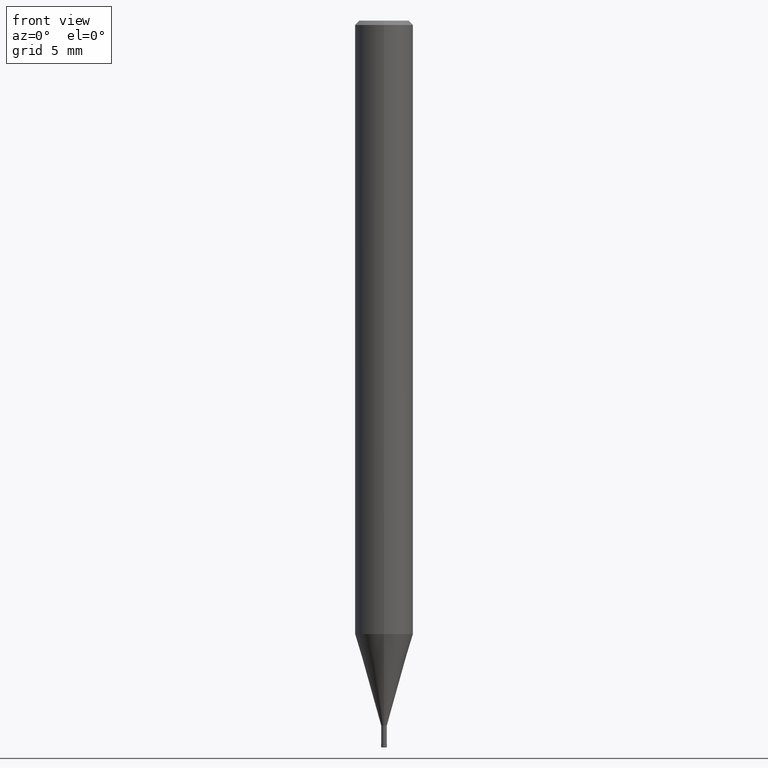
[diagram: clean part render]
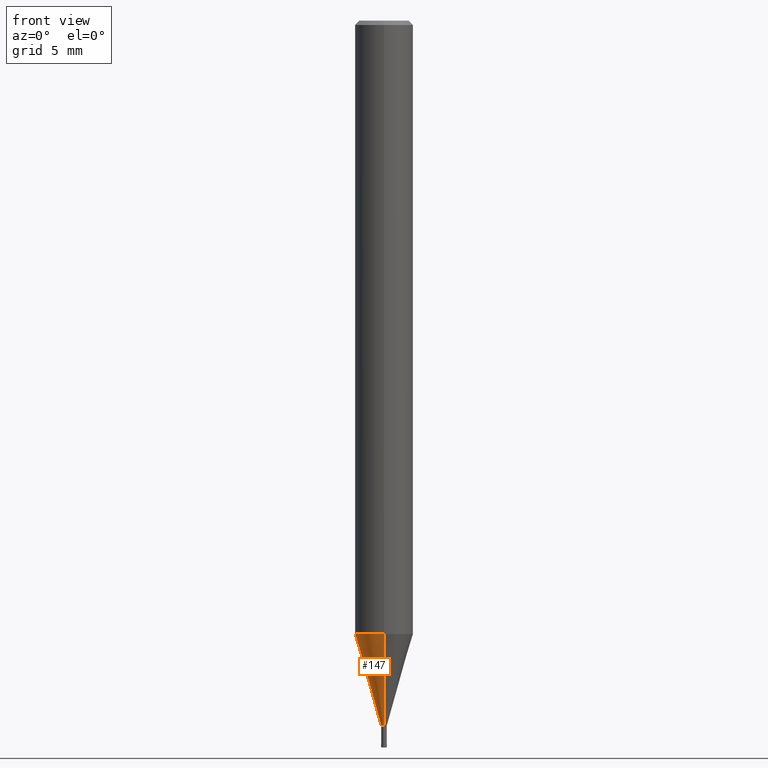
[diagram: same view with one face highlighted and labeled with its STEP entity id]
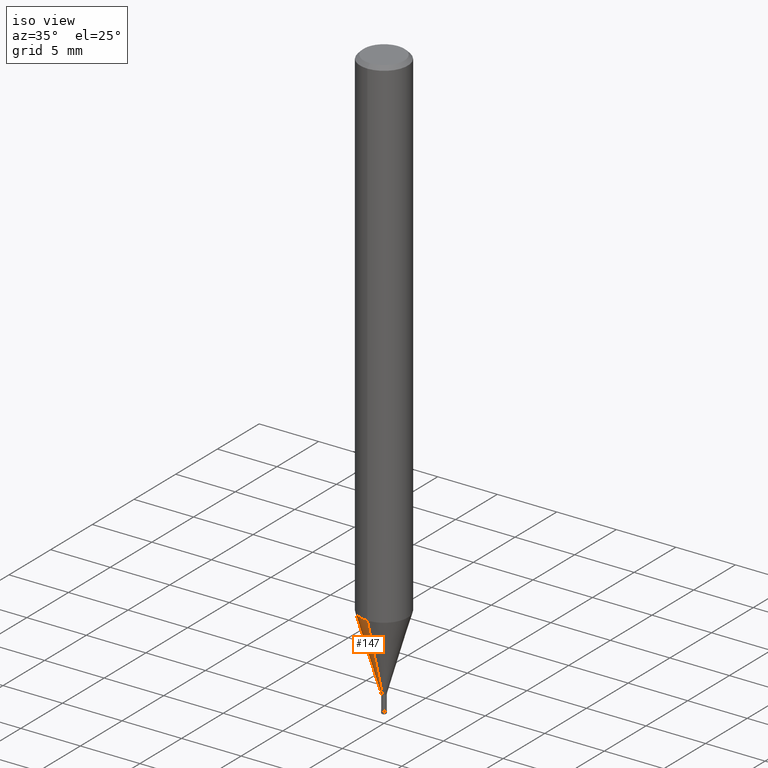
[diagram: same view with one face highlighted and labeled with its STEP entity id]
A machine part, front view. The second image highlights one B-rep face of the part: STEP entity #147.
A second angle (iso view) of the same face is appended — the face is thin or edge-on in the first view.
In plain terms, the highlighted conical surface has half-angle 15.999 deg.
Its self-contained STEP definition (entity closure, byte-faithful):
#147=ADVANCED_FACE('',(#385),#386,.T.);
#153=EDGE_CURVE('',#237,#313,#393,.T.);
#237=VERTEX_POINT('',#491);
#269=EDGE_CURVE('',#305,#237,#527,.T.);
#275=EDGE_CURVE('',#279,#313,#533,.T.);
#279=VERTEX_POINT('',#537);
#305=VERTEX_POINT('',#565);
#313=VERTEX_POINT('',#574);
#315=EDGE_CURVE('',#279,#305,#576,.T.);
#385=FACE_OUTER_BOUND('',#643,.T.);
#386=CONICAL_SURFACE('',#644,1.0962,0.279231732547063);
#393=LINE('',#652,#653);
#491=CARTESIAN_POINT('',(0.0,1.99995,-42.186));
#527=CIRCLE('',#823,1.99995);
#533=CIRCLE('',#833,0.19245);
#537=CARTESIAN_POINT('',(2.35675492793117E-017,-0.19245,-48.49));
#565=CARTESIAN_POINT('',(2.44915147732706E-016,-1.99995,-42.186));
#574=CARTESIAN_POINT('',(0.0,0.19245,-48.49));
#576=LINE('',#887,#888);
#643=EDGE_LOOP('',(#965,#966,#967,#968));
#644=AXIS2_PLACEMENT_3D('',#969,#970,#971);
#652=CARTESIAN_POINT('',(-1.34241348506009E-016,1.0962,-45.338));
#653=VECTOR('',#980,1.0);
#823=AXIS2_PLACEMENT_3D('',#1167,#1168,#1169);
#833=AXIS2_PLACEMENT_3D('',#1174,#1175,#1176);
#887=CARTESIAN_POINT('',(1.34241348506009E-016,-1.0962,-45.338));
#888=VECTOR('',#1214,1.0);
#965=ORIENTED_EDGE('',*,*,#153,.T.);
#966=ORIENTED_EDGE('',*,*,#275,.F.);
#967=ORIENTED_EDGE('',*,*,#315,.T.);
#968=ORIENTED_EDGE('',*,*,#269,.T.);
#969=CARTESIAN_POINT('',(0.0,0.0,-45.338));
#970=DIRECTION('',(-0.0,-0.0,1.0));
#971=DIRECTION('',(0.0,1.0,0.0));
#980=DIRECTION('',(3.375225981805E-017,-0.275617219465657,-0.961267469715906));
#1167=CARTESIAN_POINT('',(0.0,0.0,-42.186));
#1168=DIRECTION('',(0.0,0.0,-1.0));
#1169=DIRECTION('',(0.0,1.0,0.0));
#1174=CARTESIAN_POINT('',(0.0,0.0,-48.49));
#1175=DIRECTION('',(0.0,0.0,-1.0));
#1176=DIRECTION('',(0.0,1.0,0.0));
#1214=DIRECTION('',(3.375225981805E-017,-0.275617219465657,0.961267469715906));